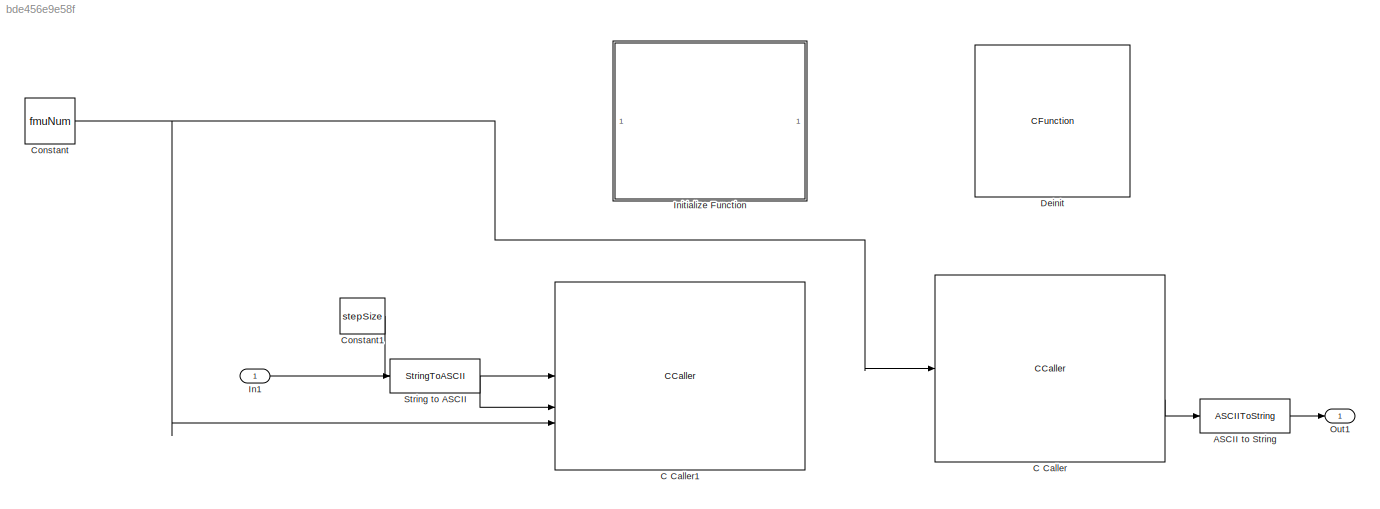
MODEL slx_bde456e9e58f
KIND model
CONFIG AbsTol = auto
CONFIG EnableMultiTasking = off
CONFIG FixedStep = 0.001
CONFIG MaxStep = auto
CONFIG MinStep = auto
CONFIG RelTol = 1e-3
CONFIG SampleTimeConstraint = Unconstrained
CONFIG SolverName = FixedStepAuto
CONFIG StartTime = 0.0
CONFIG StopTime = 3
WORKSPACE source: mxarray member
WORKSPACE Sig: Simulink.Signal (value not decoded)
BLOCK [ASCIIToString] ASCII to String
BLOCK [CCaller] C Caller
  FunctionName = SocketToFMI
  PortSpecificationStruct = %)30     .    > 4   8    (     @         %    "     ,    !     0         %  0 "0    $    _    07)G3F%M90  4&]R=$YA;64 4V-O<&4     26YD97@     5'EP90      4VEZ90      27-';&]B86P   X    P    !@    @    $          4    (     0    ,    !         !   P!O=70 #@   #     &    "     0         !0    @    !     P    $         $  # &]U=  .    .     8    (    !          %    "     $    &     0         0    !@...<+1480ch>
  Priority = 2
BLOCK [CCaller] C Caller1
  FunctionName = FMIToSocket
  PortSpecificationStruct = %)30     .    * <   8    (     @         %    "     0    !     0         %  0 "0    $    _    07)G3F%M90  4&]R=$YA;64 4V-O<&4     26YD97@     5'EP90      4VEZ90      27-';&]B86P   X    P    !@    @    $          4    (     0    ,    !         !   P!O=70 #@   #     &    "     0         !0    @    !     P    $         $  # &]U=  .    .     8    (    !          %    "     $    &     0         0    !@...<+2056ch>
  Priority = 1
BLOCK [Constant] Constant
  OutDataTypeStr = int32
  Value = fmuNum
BLOCK [Constant] Constant1
  OutDataTypeStr = double
  Value = stepSize
BLOCK [CFunction] Deinit
  CodegenTerminateCode = deinitSocket();
  CustomCodeSettingLocation = ModelConfigurationParameters
  Priority = 3
  TerminateCode = deinitSocket();
BLOCK [Inport] In1
  OutDataTypeStr = string
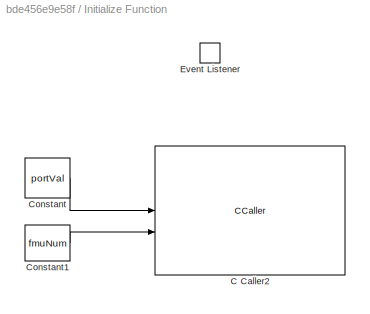
BLOCK [SubSystem] Initialize Function
  TreatAsAtomicUnit = on
BLOCK [CCaller] Initialize Function/C Caller2
  FunctionName = initSocket
  PortSpecificationStruct = %)30     .    B 4   8    (     @         %    "     ,    !     0         %  0 "0    $    _    07)G3F%M90  4&]R=$YA;64 4V-O<&4     26YD97@     5'EP90      4VEZ90      27-';&]B86P   X    P    !@    @    $          4    (     0    ,    !         !   P!O=70 #@   #     &    "     0         !0    @    !     P    $         $  # &]U=  .    .     8    (    !          %    "     $    &     0         0    !@...<+1501ch>
  Priority = 0
BLOCK [Constant] Initialize Function/Constant
  Value = portVal
BLOCK [Constant] Initialize Function/Constant1
  Value = fmuNum
BLOCK [EventListener] Initialize Function/Event Listener
  DisableCoverage = on
  EventName = reset
BLOCK [Outport] Out1
  OutDataTypeStr = string
BLOCK [StringToASCII] String to ASCII
  OutputVectorSize = 255
LINE ASCII to String:1 -> Out1:1
LINE C Caller:2 -> ASCII to String:1
LINE Constant1:1 -> C Caller1:1
NET Constant:1 -> C Caller1:3, C Caller:1
LINE In1:1 -> String to ASCII:1
LINE Initialize Function/Constant1:1 -> Initialize Function/C Caller2:2
LINE Initialize Function/Constant:1 -> Initialize Function/C Caller2:1
LINE String to ASCII:1 -> C Caller1:2
note: NET lines group one-source signal fan-out (src -> all destinations, sorted); 1:1 wires keep LINE
